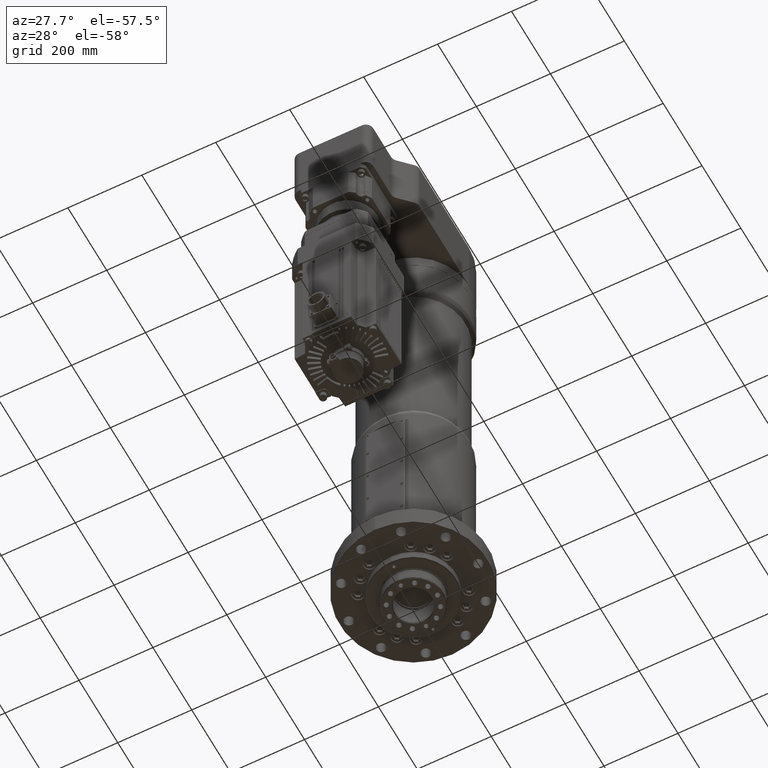
[diagram: clean part render]
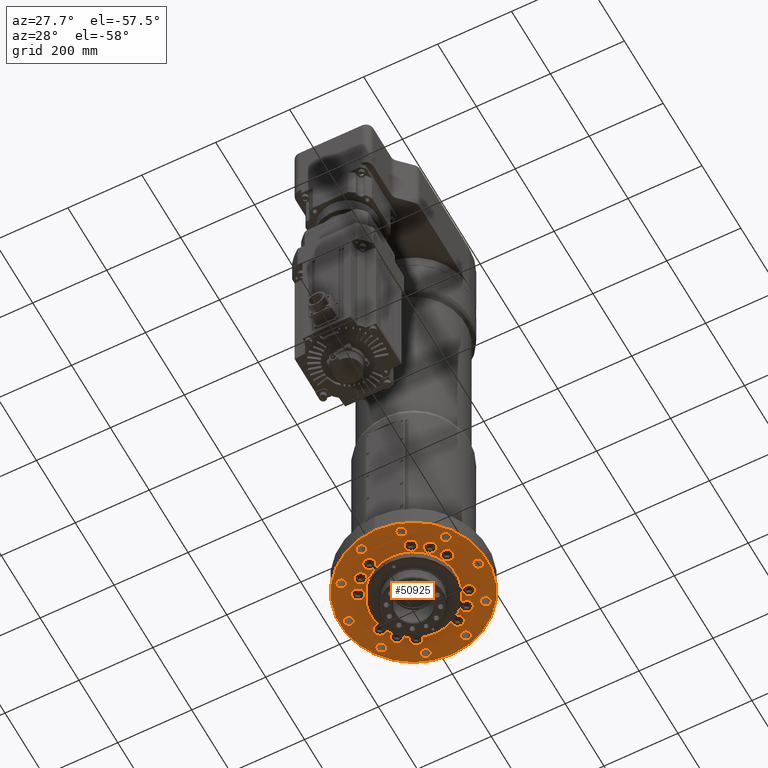
[diagram: same view with one face highlighted and labeled with its STEP entity id]
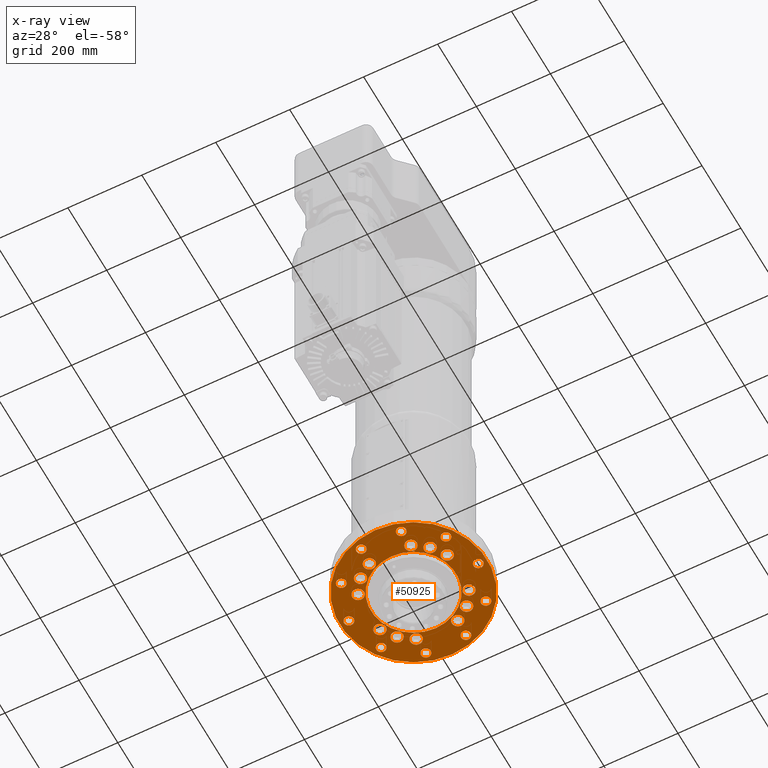
[diagram: x-ray of the same camera — body ghosted, the highlighted face saturated]
A machine part, auxiliary view. The second image highlights one B-rep face of the part: STEP entity #50925.
The next image is the same camera in x-ray: the body ghosted, the highlighted face saturated — about 0% of this face is hidden behind the body in this view.
In plain terms, the highlighted planar face has unit normal (0, 0, -1).
Its self-contained STEP definition (entity closure, byte-faithful):
#859=FACE_BOUND('',#10787,.T.);
#860=FACE_BOUND('',#10788,.T.);
#861=FACE_BOUND('',#10789,.T.);
#862=FACE_BOUND('',#10790,.T.);
#863=FACE_BOUND('',#10791,.T.);
#864=FACE_BOUND('',#10792,.T.);
#865=FACE_BOUND('',#10793,.T.);
#866=FACE_BOUND('',#10794,.T.);
#867=FACE_BOUND('',#10795,.T.);
#868=FACE_BOUND('',#10796,.T.);
#869=FACE_BOUND('',#10797,.T.);
#870=FACE_BOUND('',#10798,.T.);
#871=FACE_BOUND('',#10799,.T.);
#872=FACE_BOUND('',#10800,.T.);
#873=FACE_BOUND('',#10801,.T.);
#874=FACE_BOUND('',#10802,.T.);
#875=FACE_BOUND('',#10803,.T.);
#876=FACE_BOUND('',#10804,.T.);
#877=FACE_BOUND('',#10805,.T.);
#878=FACE_BOUND('',#10806,.T.);
#879=FACE_BOUND('',#10807,.T.);
#880=FACE_BOUND('',#10808,.T.);
#881=FACE_BOUND('',#10809,.T.);
#4525=CIRCLE('',#54090,199.);
#4530=CIRCLE('',#54097,115.);
#4531=CIRCLE('',#54098,16.);
#4532=CIRCLE('',#54099,16.);
#4533=CIRCLE('',#54100,16.);
#4534=CIRCLE('',#54101,16.);
#4535=CIRCLE('',#54102,16.);
#4536=CIRCLE('',#54103,16.);
#4537=CIRCLE('',#54104,16.);
#4538=CIRCLE('',#54105,16.);
#4539=CIRCLE('',#54106,16.);
#4540=CIRCLE('',#54107,16.);
#4541=CIRCLE('',#54108,16.);
#4542=CIRCLE('',#54109,16.);
#4543=CIRCLE('',#54110,13.);
#4544=CIRCLE('',#54111,13.);
#4545=CIRCLE('',#54112,13.);
#4546=CIRCLE('',#54113,13.);
#4547=CIRCLE('',#54114,13.);
#4548=CIRCLE('',#54115,13.);
#4549=CIRCLE('',#54116,13.);
#4550=CIRCLE('',#54117,13.);
#4551=CIRCLE('',#54118,13.);
#4552=CIRCLE('',#54119,13.);
#6118=PLANE('',#54096);
#7923=FACE_OUTER_BOUND('',#10786,.T.);
#10786=EDGE_LOOP('',(#36343));
#10787=EDGE_LOOP('',(#36344));
#10788=EDGE_LOOP('',(#36345));
#10789=EDGE_LOOP('',(#36346));
#10790=EDGE_LOOP('',(#36347));
#10791=EDGE_LOOP('',(#36348));
#10792=EDGE_LOOP('',(#36349));
#10793=EDGE_LOOP('',(#36350));
#10794=EDGE_LOOP('',(#36351));
#10795=EDGE_LOOP('',(#36352));
#10796=EDGE_LOOP('',(#36353));
#10797=EDGE_LOOP('',(#36354));
#10798=EDGE_LOOP('',(#36355));
#10799=EDGE_LOOP('',(#36356));
#10800=EDGE_LOOP('',(#36357));
#10801=EDGE_LOOP('',(#36358));
#10802=EDGE_LOOP('',(#36359));
#10803=EDGE_LOOP('',(#36360));
#10804=EDGE_LOOP('',(#36361));
#10805=EDGE_LOOP('',(#36362));
#10806=EDGE_LOOP('',(#36363));
#10807=EDGE_LOOP('',(#36364));
#10808=EDGE_LOOP('',(#36365));
#10809=EDGE_LOOP('',(#36366));
#23623=VERTEX_POINT('',#73028);
#23628=VERTEX_POINT('',#73042);
#23629=VERTEX_POINT('',#73044);
#23630=VERTEX_POINT('',#73046);
#23631=VERTEX_POINT('',#73048);
#23632=VERTEX_POINT('',#73050);
#23633=VERTEX_POINT('',#73052);
#23634=VERTEX_POINT('',#73054);
#23635=VERTEX_POINT('',#73056);
#23636=VERTEX_POINT('',#73058);
#23637=VERTEX_POINT('',#73060);
#23638=VERTEX_POINT('',#73062);
#23639=VERTEX_POINT('',#73064);
#23640=VERTEX_POINT('',#73066);
#23641=VERTEX_POINT('',#73068);
#23642=VERTEX_POINT('',#73070);
#23643=VERTEX_POINT('',#73072);
#23644=VERTEX_POINT('',#73074);
#23645=VERTEX_POINT('',#73076);
#23646=VERTEX_POINT('',#73078);
#23647=VERTEX_POINT('',#73080);
#23648=VERTEX_POINT('',#73082);
#23649=VERTEX_POINT('',#73084);
#23650=VERTEX_POINT('',#73086);
#28648=EDGE_CURVE('',#23623,#23623,#4525,.T.);
#28655=EDGE_CURVE('',#23628,#23628,#4530,.T.);
#28656=EDGE_CURVE('',#23629,#23629,#4531,.T.);
#28657=EDGE_CURVE('',#23630,#23630,#4532,.T.);
#28658=EDGE_CURVE('',#23631,#23631,#4533,.T.);
#28659=EDGE_CURVE('',#23632,#23632,#4534,.T.);
#28660=EDGE_CURVE('',#23633,#23633,#4535,.T.);
#28661=EDGE_CURVE('',#23634,#23634,#4536,.T.);
#28662=EDGE_CURVE('',#23635,#23635,#4537,.T.);
#28663=EDGE_CURVE('',#23636,#23636,#4538,.T.);
#28664=EDGE_CURVE('',#23637,#23637,#4539,.T.);
#28665=EDGE_CURVE('',#23638,#23638,#4540,.T.);
#28666=EDGE_CURVE('',#23639,#23639,#4541,.T.);
#28667=EDGE_CURVE('',#23640,#23640,#4542,.T.);
#28668=EDGE_CURVE('',#23641,#23641,#4543,.T.);
#28669=EDGE_CURVE('',#23642,#23642,#4544,.T.);
#28670=EDGE_CURVE('',#23643,#23643,#4545,.T.);
#28671=EDGE_CURVE('',#23644,#23644,#4546,.T.);
#28672=EDGE_CURVE('',#23645,#23645,#4547,.T.);
#28673=EDGE_CURVE('',#23646,#23646,#4548,.T.);
#28674=EDGE_CURVE('',#23647,#23647,#4549,.T.);
#28675=EDGE_CURVE('',#23648,#23648,#4550,.T.);
#28676=EDGE_CURVE('',#23649,#23649,#4551,.T.);
#28677=EDGE_CURVE('',#23650,#23650,#4552,.T.);
#36343=ORIENTED_EDGE('',*,*,#28648,.F.);
#36344=ORIENTED_EDGE('',*,*,#28655,.F.);
#36345=ORIENTED_EDGE('',*,*,#28656,.T.);
#36346=ORIENTED_EDGE('',*,*,#28657,.T.);
#36347=ORIENTED_EDGE('',*,*,#28658,.T.);
#36348=ORIENTED_EDGE('',*,*,#28659,.T.);
#36349=ORIENTED_EDGE('',*,*,#28660,.T.);
#36350=ORIENTED_EDGE('',*,*,#28661,.T.);
#36351=ORIENTED_EDGE('',*,*,#28662,.T.);
#36352=ORIENTED_EDGE('',*,*,#28663,.T.);
#36353=ORIENTED_EDGE('',*,*,#28664,.T.);
#36354=ORIENTED_EDGE('',*,*,#28665,.T.);
#36355=ORIENTED_EDGE('',*,*,#28666,.T.);
#36356=ORIENTED_EDGE('',*,*,#28667,.T.);
#36357=ORIENTED_EDGE('',*,*,#28668,.T.);
#36358=ORIENTED_EDGE('',*,*,#28669,.T.);
#36359=ORIENTED_EDGE('',*,*,#28670,.T.);
#36360=ORIENTED_EDGE('',*,*,#28671,.T.);
#36361=ORIENTED_EDGE('',*,*,#28672,.T.);
#36362=ORIENTED_EDGE('',*,*,#28673,.T.);
#36363=ORIENTED_EDGE('',*,*,#28674,.T.);
#36364=ORIENTED_EDGE('',*,*,#28675,.T.);
#36365=ORIENTED_EDGE('',*,*,#28676,.T.);
#36366=ORIENTED_EDGE('',*,*,#28677,.T.);
#50925=ADVANCED_FACE('',(#7923,#859,#860,#861,#862,#863,#864,#865,#866,
#867,#868,#869,#870,#871,#872,#873,#874,#875,#876,#877,#878,#879,#880,#881),
#6118,.T.);
#54090=AXIS2_PLACEMENT_3D('',#73029,#59306,#59307);
#54096=AXIS2_PLACEMENT_3D('',#73041,#59320,#59321);
#54097=AXIS2_PLACEMENT_3D('',#73043,#59322,#59323);
#54098=AXIS2_PLACEMENT_3D('',#73045,#59324,#59325);
#54099=AXIS2_PLACEMENT_3D('',#73047,#59326,#59327);
#54100=AXIS2_PLACEMENT_3D('',#73049,#59328,#59329);
#54101=AXIS2_PLACEMENT_3D('',#73051,#59330,#59331);
#54102=AXIS2_PLACEMENT_3D('',#73053,#59332,#59333);
#54103=AXIS2_PLACEMENT_3D('',#73055,#59334,#59335);
#54104=AXIS2_PLACEMENT_3D('',#73057,#59336,#59337);
#54105=AXIS2_PLACEMENT_3D('',#73059,#59338,#59339);
#54106=AXIS2_PLACEMENT_3D('',#73061,#59340,#59341);
#54107=AXIS2_PLACEMENT_3D('',#73063,#59342,#59343);
#54108=AXIS2_PLACEMENT_3D('',#73065,#59344,#59345);
#54109=AXIS2_PLACEMENT_3D('',#73067,#59346,#59347);
#54110=AXIS2_PLACEMENT_3D('',#73069,#59348,#59349);
#54111=AXIS2_PLACEMENT_3D('',#73071,#59350,#59351);
#54112=AXIS2_PLACEMENT_3D('',#73073,#59352,#59353);
#54113=AXIS2_PLACEMENT_3D('',#73075,#59354,#59355);
#54114=AXIS2_PLACEMENT_3D('',#73077,#59356,#59357);
#54115=AXIS2_PLACEMENT_3D('',#73079,#59358,#59359);
#54116=AXIS2_PLACEMENT_3D('',#73081,#59360,#59361);
#54117=AXIS2_PLACEMENT_3D('',#73083,#59362,#59363);
#54118=AXIS2_PLACEMENT_3D('',#73085,#59364,#59365);
#54119=AXIS2_PLACEMENT_3D('',#73087,#59366,#59367);
#59306=DIRECTION('center_axis',(0.,0.,1.));
#59307=DIRECTION('ref_axis',(0.,-1.,0.));
#59320=DIRECTION('center_axis',(0.,0.,-1.));
#59321=DIRECTION('ref_axis',(-1.,0.,0.));
#59322=DIRECTION('center_axis',(0.,0.,-1.));
#59323=DIRECTION('ref_axis',(1.,0.,0.));
#59324=DIRECTION('center_axis',(0.,0.,1.));
#59325=DIRECTION('ref_axis',(1.,0.,0.));
#59326=DIRECTION('center_axis',(0.,0.,1.));
#59327=DIRECTION('ref_axis',(1.,0.,0.));
#59328=DIRECTION('center_axis',(0.,0.,1.));
#59329=DIRECTION('ref_axis',(1.,0.,0.));
#59330=DIRECTION('center_axis',(0.,0.,1.));
#59331=DIRECTION('ref_axis',(6.12323399573677E-17,1.,0.));
#59332=DIRECTION('center_axis',(0.,0.,1.));
#59333=DIRECTION('ref_axis',(6.12323399573677E-17,1.,0.));
#59334=DIRECTION('center_axis',(0.,0.,1.));
#59335=DIRECTION('ref_axis',(6.12323399573677E-17,1.,0.));
#59336=DIRECTION('center_axis',(0.,0.,1.));
#59337=DIRECTION('ref_axis',(-1.,1.22464679914735E-16,0.));
#59338=DIRECTION('center_axis',(0.,0.,1.));
#59339=DIRECTION('ref_axis',(-1.,1.22464679914735E-16,0.));
#59340=DIRECTION('center_axis',(0.,0.,1.));
#59341=DIRECTION('ref_axis',(-1.,1.22464679914735E-16,0.));
#59342=DIRECTION('center_axis',(0.,0.,1.));
#59343=DIRECTION('ref_axis',(-1.83697019872103E-16,-1.,0.));
#59344=DIRECTION('center_axis',(0.,0.,1.));
#59345=DIRECTION('ref_axis',(-1.83697019872103E-16,-1.,0.));
#59346=DIRECTION('center_axis',(0.,0.,1.));
#59347=DIRECTION('ref_axis',(-1.83697019872103E-16,-1.,0.));
#59348=DIRECTION('center_axis',(0.,0.,1.));
#59349=DIRECTION('ref_axis',(-1.,0.,0.));
#59350=DIRECTION('center_axis',(0.,0.,1.));
#59351=DIRECTION('ref_axis',(-0.809016994374947,-0.587785252292473,0.));
#59352=DIRECTION('center_axis',(0.,0.,1.));
#59353=DIRECTION('ref_axis',(-0.309016994374947,-0.951056516295154,0.));
#59354=DIRECTION('center_axis',(0.,0.,1.));
#59355=DIRECTION('ref_axis',(0.309016994374947,-0.951056516295154,0.));
#59356=DIRECTION('center_axis',(0.,0.,1.));
#59357=DIRECTION('ref_axis',(0.809016994374947,-0.587785252292473,0.));
#59358=DIRECTION('center_axis',(0.,0.,1.));
#59359=DIRECTION('ref_axis',(1.,-1.70803542250024E-16,0.));
#59360=DIRECTION('center_axis',(0.,0.,1.));
#59361=DIRECTION('ref_axis',(0.809016994374947,0.587785252292473,0.));
#59362=DIRECTION('center_axis',(0.,0.,1.));
#59363=DIRECTION('ref_axis',(0.309016994374947,0.951056516295154,0.));
#59364=DIRECTION('center_axis',(0.,0.,1.));
#59365=DIRECTION('ref_axis',(-0.309016994374947,0.951056516295154,0.));
#59366=DIRECTION('center_axis',(0.,0.,1.));
#59367=DIRECTION('ref_axis',(-0.809016994374947,0.587785252292473,0.));
#73028=CARTESIAN_POINT('',(-2.43704713030323E-14,199.,0.));
#73029=CARTESIAN_POINT('Origin',(0.,0.,0.));
#73041=CARTESIAN_POINT('Origin',(0.,115.,0.));
#73042=CARTESIAN_POINT('',(-1.40834381901946E-14,-115.,0.));
#73043=CARTESIAN_POINT('Origin',(0.,0.,0.));
#73044=CARTESIAN_POINT('',(-136.538935675874,56.208228811513,0.));
#73045=CARTESIAN_POINT('Origin',(-120.538935675874,56.208228811513,0.));
#73046=CARTESIAN_POINT('',(-72.2082288115131,120.538935675874,0.));
#73047=CARTESIAN_POINT('Origin',(-56.2082288115131,120.538935675874,0.));
#73048=CARTESIAN_POINT('',(-110.045201897811,94.0452018978108,0.));
#73049=CARTESIAN_POINT('Origin',(-94.0452018978108,94.0452018978108,0.));
#73050=CARTESIAN_POINT('',(-120.538935675874,-72.2082288115131,0.));
#73051=CARTESIAN_POINT('Origin',(-120.538935675874,-56.2082288115131,0.));
#73052=CARTESIAN_POINT('',(-56.208228811513,-136.538935675874,0.));
#73053=CARTESIAN_POINT('Origin',(-56.208228811513,-120.538935675874,0.));
#73054=CARTESIAN_POINT('',(-94.0452018978108,-110.045201897811,0.));
#73055=CARTESIAN_POINT('Origin',(-94.0452018978108,-94.0452018978108,0.));
#73056=CARTESIAN_POINT('',(72.2082288115131,-120.538935675874,0.));
#73057=CARTESIAN_POINT('Origin',(56.208228811513,-120.538935675874,0.));
#73058=CARTESIAN_POINT('',(136.538935675874,-56.208228811513,0.));
#73059=CARTESIAN_POINT('Origin',(120.538935675874,-56.208228811513,0.));
#73060=CARTESIAN_POINT('',(110.045201897811,-94.0452018978108,0.));
#73061=CARTESIAN_POINT('Origin',(94.0452018978108,-94.0452018978108,0.));
#73062=CARTESIAN_POINT('',(120.538935675874,72.208228811513,0.));
#73063=CARTESIAN_POINT('Origin',(120.538935675874,56.208228811513,0.));
#73064=CARTESIAN_POINT('',(56.208228811513,136.538935675874,0.));
#73065=CARTESIAN_POINT('Origin',(56.208228811513,120.538935675874,0.));
#73066=CARTESIAN_POINT('',(94.0452018978108,110.045201897811,0.));
#73067=CARTESIAN_POINT('Origin',(94.0452018978108,94.0452018978108,0.));
#73068=CARTESIAN_POINT('',(-162.,-1.59204083889156E-15,0.));
#73069=CARTESIAN_POINT('Origin',(-175.,0.,0.));
#73070=CARTESIAN_POINT('',(-131.060753088742,-95.2212108713807,0.));
#73071=CARTESIAN_POINT('Origin',(-141.577974015616,-102.862419151183,0.));
#73072=CARTESIAN_POINT('',(-50.0607530887415,-154.071155639815,0.));
#73073=CARTESIAN_POINT('Origin',(-54.0779740156158,-166.434890351652,0.));
#73074=CARTESIAN_POINT('',(50.0607530887415,-154.071155639815,0.));
#73075=CARTESIAN_POINT('Origin',(54.0779740156158,-166.434890351652,0.));
#73076=CARTESIAN_POINT('',(131.060753088741,-95.2212108713807,0.));
#73077=CARTESIAN_POINT('Origin',(141.577974015616,-102.862419151183,0.));
#73078=CARTESIAN_POINT('',(162.,-3.17146498998631E-14,0.));
#73079=CARTESIAN_POINT('Origin',(175.,-3.5527136788005E-14,0.));
#73080=CARTESIAN_POINT('',(131.060753088742,95.2212108713807,0.));
#73081=CARTESIAN_POINT('Origin',(141.577974015616,102.862419151183,0.));
#73082=CARTESIAN_POINT('',(50.0607530887415,154.071155639815,0.));
#73083=CARTESIAN_POINT('Origin',(54.0779740156158,166.434890351652,0.));
#73084=CARTESIAN_POINT('',(-50.0607530887414,154.071155639815,0.));
#73085=CARTESIAN_POINT('Origin',(-54.0779740156158,166.434890351652,0.));
#73086=CARTESIAN_POINT('',(-131.060753088741,95.2212108713807,0.));
#73087=CARTESIAN_POINT('Origin',(-141.577974015616,102.862419151183,0.));